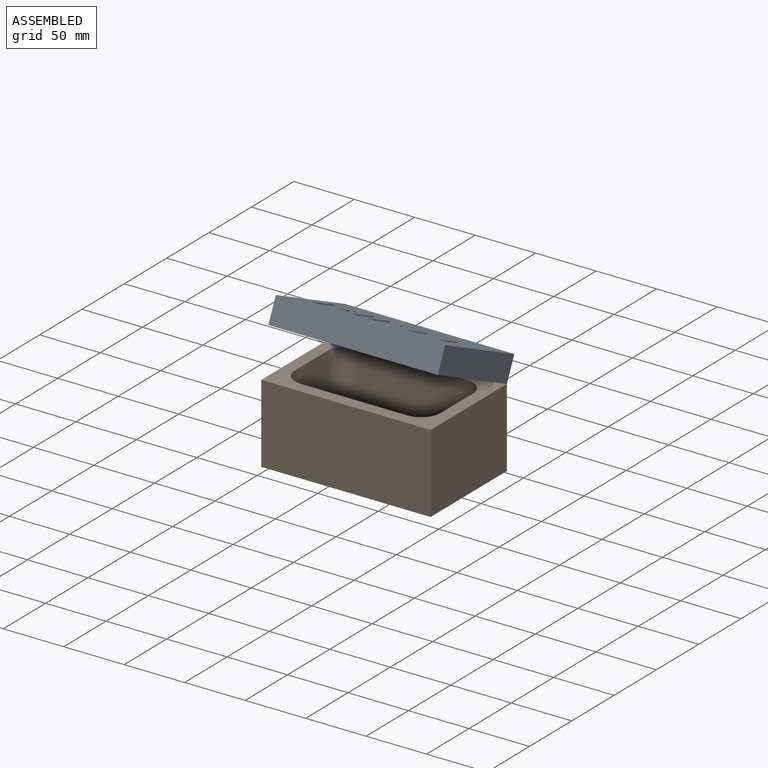
[diagram: assembled view]
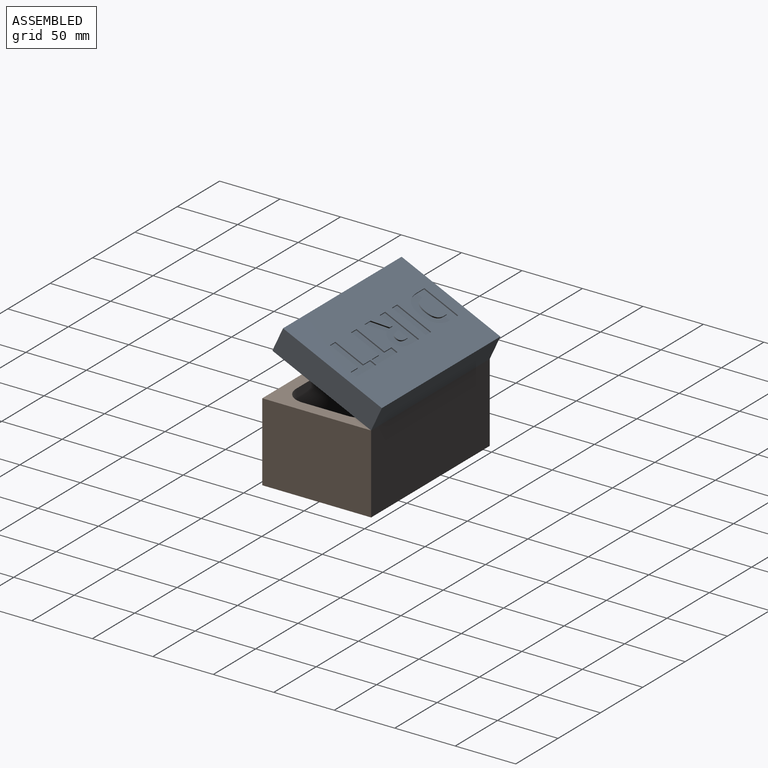
[diagram: assembled view, second angle]
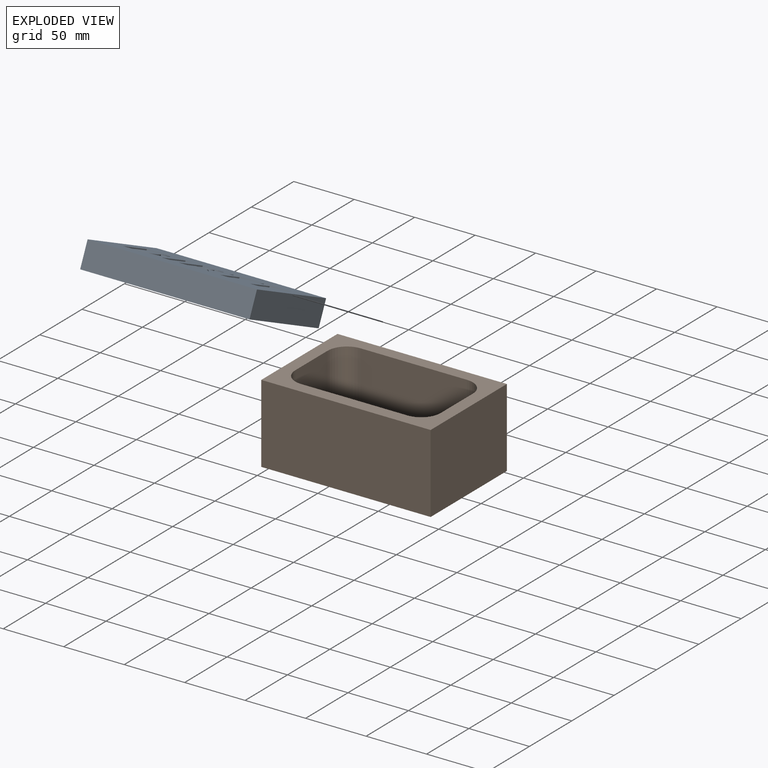
[diagram: exploded view]
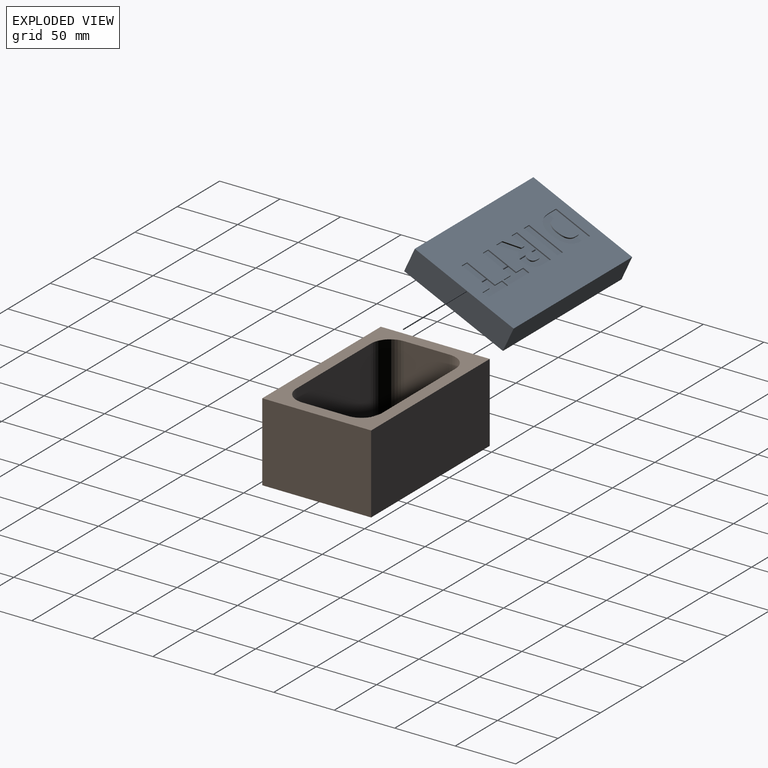
[diagram: exploded view, second angle]
ASSEMBLY  parts=2 mates=2
PART A: 64 faces, bbox 140x90x21 mm
  f0: plane 140x90mm, normal (0,0,1), area 10593.3mm2, adj f1,f2,f3,f4,f6,f7,f8,f9
  f1: plane 90x21mm, normal (1,0,0), area 1890mm2, adj f0,f2,f4,f5
  f2: plane 140x21mm, normal (0,1,0), area 2940mm2, adj f0,f1,f3,f5
  f3: plane 90x21mm, normal (-1,0,0), area 1890mm2, adj f0,f2,f4,f5
  f4: plane 140x21mm, normal (0,-1,0), area 2940mm2, adj f0,f1,f3,f5
  f5: plane 140x90mm, normal (0,0,-1), area 12600mm2, adj f1,f2,f3,f4
  f6: plane 6.53x1mm, normal (0,1,0), area 6.5mm2, adj f0,f7,f13,f14
  f7: plane 25.37x1mm, normal (-1,0,0), area 25.4mm2, adj f0,f6,f8,f14
  f8: plane 8.36x1mm, normal (0,1,0), area 8.4mm2, adj f0,f7,f9,f14
  f9: plane 5.43x1mm, normal (-1,0,0), area 5.4mm2, adj f0,f8,f10,f14
  f10: plane 23.26x1mm, normal (0,-1,0), area 23.3mm2, adj f0,f9,f11,f14
  f11: plane 5.43x1mm, normal (1,0,0), area 5.4mm2, adj f0,f10,f12,f14
  f12: plane 8.37x1mm, normal (0,1,0), area 8.4mm2, adj f0,f11,f13,f14
  f13: plane 25.37x1mm, normal (1,0,0), area 25.4mm2, adj f0,f6,f12,f14
  f14: plane 30.8x23.26mm, normal (0,0,1), area 292.1mm2, adj f6,f7,f8,f9,f10,f11,f12,f13
  f15: plane 6.53x1mm, normal (0,1,0), area 6.5mm2, adj f0,f16,f22,f23
  f16: plane 25.37x1mm, normal (-1,0,0), area 25.4mm2, adj f0,f15,f17,f23
  f17: plane 8.36x1mm, normal (0,1,0), area 8.4mm2, adj f0,f16,f18,f23
  f18: plane 5.43x1mm, normal (-1,0,0), area 5.4mm2, adj f0,f17,f19,f23
  f19: plane 23.26x1mm, normal (0,-1,0), area 23.3mm2, adj f0,f18,f20,f23
  f20: plane 5.43x1mm, normal (1,0,0), area 5.4mm2, adj f0,f19,f21,f23
  f21: plane 8.37x1mm, normal (0,1,0), area 8.4mm2, adj f0,f20,f22,f23
  f22: plane 25.37x1mm, normal (1,0,0), area 25.4mm2, adj f0,f15,f21,f23
  f23: plane 30.8x23.26mm, normal (0,0,1), area 292.1mm2, adj f15,f16,f17,f18,f19,f20,f21,f22
  f24: plane 11.82x1mm, normal (-1,0,0), area 11.8mm2, adj f0,f25,f42,f43
  f25: plane 3.47x1mm, normal (0,1,0), area 3.5mm2, adj f0,f24,f26,f43
  f26: plane 11.82x7.36mm, normal (0.85,0.53,0), area 13.9mm2, adj f0,f25,f27,f43
  f27: plane 7.25x1mm, normal (0,1,0), area 7.2mm2, adj f0,f26,f28,f43
  f28: extruded ~13.42x9.06mm, area 16.2mm2, adj f0,f27,f29,f43
  f29: extruded ~4.24x3.32mm, area 5.4mm2, adj f0,f28,f30,f43
  f30: extruded ~4.83x1.49mm, area 5.1mm2, adj f0,f29,f31,f43
  f31: extruded ~6.94x3.01mm, area 7.9mm2, adj f0,f30,f32,f43
  f32: extruded ~9.29x2.29mm, area 9.7mm2, adj f0,f31,f33,f43
  f33: plane 8.97x1mm, normal (0,-1,0), area 9mm2, adj f0,f32,f34,f43
  f34: plane 30.8x1mm, normal (1,0,0), area 30.8mm2, adj f0,f33,f42,f43
  f35: plane 2.1x1mm, normal (0,-1,0), area 2.1mm2, adj f36,f41,f43,f44
  f36: plane 8.32x1mm, normal (-1,0,0), area 8.3mm2, adj f35,f37,f43,f44
  f37: plane 1.98x1mm, normal (0,1,0), area 2mm2, adj f36,f38,f43,f44
  f38: extruded ~4.66x1mm, area 4.8mm2, adj f37,f39,f43,f44
  f39: extruded ~3.12x1.51mm, area 3.6mm2, adj f38,f40,f43,f44
  f40: extruded ~3.24x1.47mm, area 3.7mm2, adj f39,f41,f43,f44
  f41: extruded ~4.57x1.03mm, area 4.8mm2, adj f35,f40,f43,f44
  f42: plane 6.53x1mm, normal (0,1,0), area 6.5mm2, adj f0,f24,f34,f43
  f43: plane 30.8x24.61mm, normal (0,0,1), area 463.3mm2, adj f24,f25,f26,f27,f28,f29,f30,f31
  f44: plane 8.32x8.15mm, normal (0,0,1), area 59.9mm2, adj f35,f36,f37,f38,f39,f40,f41
  f45: plane 30.8x1mm, normal (1,0,0), area 30.8mm2, adj f0,f46,f48,f49
  f46: plane 6.53x1mm, normal (0,1,0), area 6.5mm2, adj f0,f45,f47,f49
  f47: plane 30.8x1mm, normal (-1,0,0), area 30.8mm2, adj f0,f46,f48,f49
  f48: plane 6.53x1mm, normal (0,-1,0), area 6.5mm2, adj f0,f45,f47,f49
  f49: plane 30.8x6.53mm, normal (0,0,1), area 201.2mm2, adj f45,f46,f47,f48
  f50: extruded ~9.92x8.76mm, area 15.2mm2, adj f51,f61,f62,f63
  f51: extruded ~10.13x9.44mm, area 15.9mm2, adj f50,f52,f62,f63
  f52: plane 2.8x1mm, normal (0,-1,0), area 2.8mm2, adj f51,f53,f62,f63
  f53: plane 20.06x1mm, normal (-1,0,0), area 20.1mm2, adj f52,f61,f62,f63
  f54: extruded ~11.65x4.33mm, area 12.8mm2, adj f0,f55,f60,f62
  f55: extruded ~11.13x4.17mm, area 12.2mm2, adj f0,f54,f56,f62
  f56: extruded ~11.72x3.98mm, area 12.7mm2, adj f0,f55,f57,f62
  f57: plane 9.67x1mm, normal (0,-1,0), area 9.7mm2, adj f0,f56,f58,f62
  f58: plane 30.8x1mm, normal (1,0,0), area 30.8mm2, adj f0,f57,f59,f62
  f59: plane 8.72x1mm, normal (0,1,0), area 8.7mm2, adj f0,f58,f60,f62
  f60: extruded ~12.5x4.05mm, area 13.5mm2, adj f0,f54,f59,f62
  f61: plane 3.47x1mm, normal (0,1,0), area 3.5mm2, adj f50,f53,f62,f63
  f62: plane 30.8x25.56mm, normal (0,0,1), area 483mm2, adj f50,f51,f52,f53,f54,f55,f56,f57
  f63: plane 20.06x12.24mm, normal (0,0,1), area 215mm2, adj f50,f51,f52,f53,f61
PART B: 15 faces, bbox 140x90x65 mm
  f0: plane 90x65mm, normal (1,0,0), area 5850mm2, adj f1,f3,f4,f5
  f1: plane 140x65mm, normal (0,1,0), area 9100mm2, adj f0,f2,f4,f5
  f2: plane 90x65mm, normal (-1,0,0), area 5850mm2, adj f1,f3,f4,f5
  f3: plane 140x65mm, normal (0,-1,0), area 9100mm2, adj f0,f2,f4,f5
  f4: plane 140x90mm, normal (0,0,1), area 4419.8mm2, adj f0,f1,f2,f3,f7,f8,f9,f10
  f5: plane 140x90mm, normal (0,0,-1), area 12600mm2, adj f0,f1,f2,f3
  f6: plane 120x70mm, normal (0,0,1), area 8180.2mm2, adj f7,f8,f9,f10,f11,f12,f13,f14
  f7: plane 88x55mm, normal (0,-1,0), area 4840mm2, adj f4,f6,f8,f14
  f8: cylinder r=16mm len=55mm, axis (0,0,1), area 1382.3mm2, adj f4,f6,f7,f9
  f9: plane 55x38mm, normal (1,0,0), area 2090mm2, adj f4,f6,f8,f10
  f10: cylinder r=16mm len=55mm, axis (0,0,1), area 1382.3mm2, adj f4,f6,f9,f11
  f11: plane 88x55mm, normal (0,1,0), area 4840mm2, adj f4,f6,f10,f12
  f12: cylinder r=16mm len=55mm, axis (0,0,1), area 1382.3mm2, adj f4,f6,f11,f13
  f13: plane 55x38mm, normal (-1,0,0), area 2090mm2, adj f4,f6,f12,f14
  f14: cylinder r=16mm len=55mm, axis (0,0,1), area 1382.3mm2, adj f4,f6,f7,f13
PLACE A rot(axis=(-1,0,0),24.8deg) t=(-31.76,-20.93,23.26)mm
PLACE B t=(-31.76,2.22,-1.67)mm fixed
MATE revolute A.f1 <-> B.f0  axis (1,0,0) through (38.24,47.22,63.33)mm
MATE planar A.f1 <-> B.f0  axis (1,0,0) through (38.24,10.8,91.77)mm
